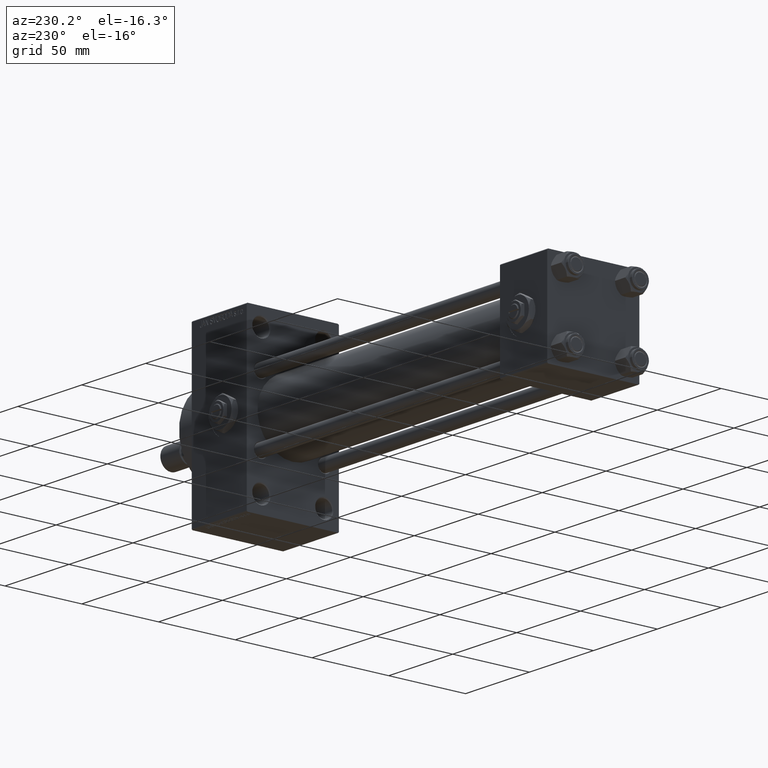
[diagram: clean part render]
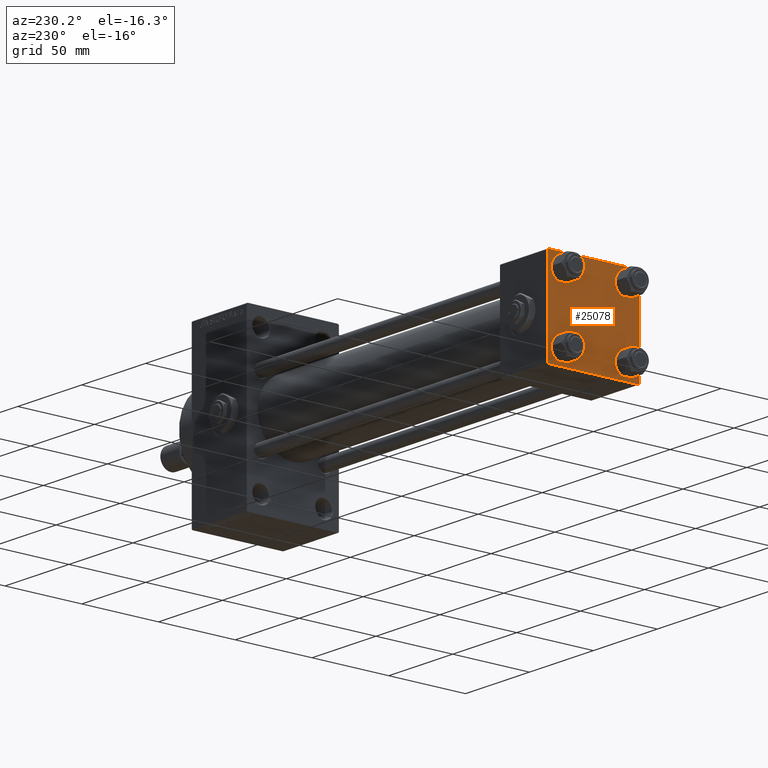
[diagram: same view with one face highlighted and labeled with its STEP entity id]
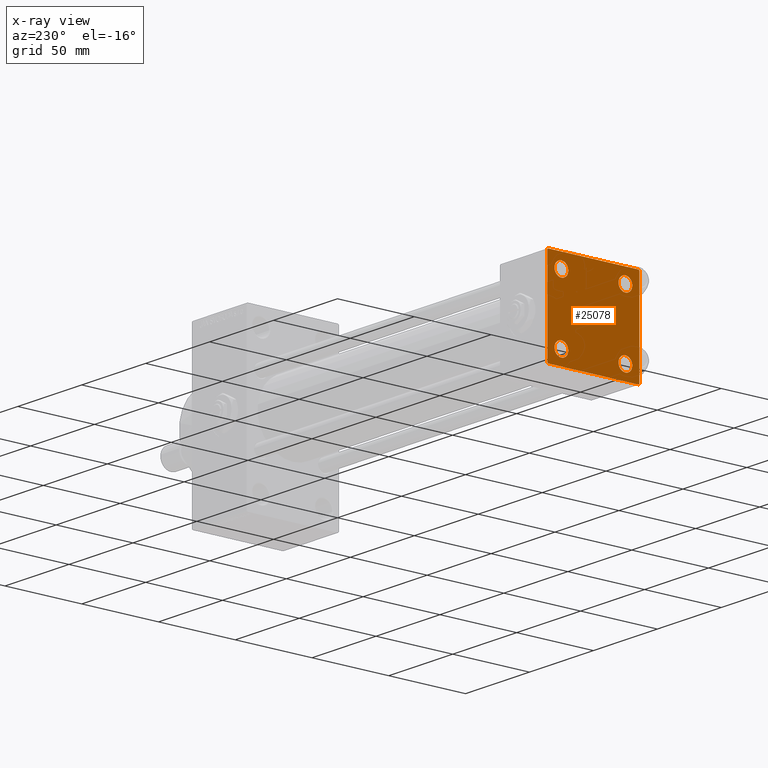
[diagram: x-ray of the same camera — body ghosted, the highlighted face saturated]
A machine part, auxiliary view. The second image highlights one B-rep face of the part: STEP entity #25078.
The next image is the same camera in x-ray: the body ghosted, the highlighted face saturated — about 0% of this face is hidden behind the body in this view.
In plain terms, the highlighted planar face has unit normal (-1, 0, 0).
Its self-contained STEP definition (entity closure, byte-faithful):
#1980 = CARTESIAN_POINT ( 'NONE',  ( 0.000000000000000000, -30.00000000000000000, 29.49999999999999289 ) ) ;
#2501 = VERTEX_POINT ( 'NONE', #5620 ) ;
#2502 = EDGE_LOOP ( 'NONE', ( #36385, #16051 ) ) ;
#3528 = VECTOR ( 'NONE', #19296, 1000.000000000000000 ) ;
#4139 = CARTESIAN_POINT ( 'NONE',  ( 0.000000000000000000, -20.84999999999999076, 20.85000000000000497 ) ) ;
#4181 = CIRCLE ( 'NONE', #20274, 4.500000000000017764 ) ;
#4874 = LINE ( 'NONE', #47580, #40814 ) ;
#4935 = ORIENTED_EDGE ( 'NONE', *, *, #15063, .T. ) ;
#5620 = CARTESIAN_POINT ( 'NONE',  ( 0.000000000000000000, 20.84999999999999787, -16.34999999999998366 ) ) ;
#6620 = CIRCLE ( 'NONE', #38924, 4.500000000000017764 ) ;
#6786 = EDGE_CURVE ( 'NONE', #34604, #22302, #4181, .T. ) ;
#6919 = DIRECTION ( 'NONE',  ( 1.000000000000000000, -0.000000000000000000, 0.000000000000000000 ) ) ;
#7015 = DIRECTION ( 'NONE',  ( 1.000000000000000000, -0.000000000000000000, 0.000000000000000000 ) ) ;
#7062 = VERTEX_POINT ( 'NONE', #46184 ) ;
#7713 = AXIS2_PLACEMENT_3D ( 'NONE', #16849, #47196, #19656 ) ;
#8112 = FACE_BOUND ( 'NONE', #26188, .T. ) ;
#8536 = EDGE_CURVE ( 'NONE', #28971, #17766, #49667, .T. ) ;
#8885 = CARTESIAN_POINT ( 'NONE',  ( 0.000000000000000000, -29.75000000000001066, -29.75000000000001066 ) ) ;
#9217 = VECTOR ( 'NONE', #34928, 1000.000000000000000 ) ;
#9225 = DIRECTION ( 'NONE',  ( 1.000000000000000000, -0.000000000000000000, 0.000000000000000000 ) ) ;
#10045 = CARTESIAN_POINT ( 'NONE',  ( 0.000000000000000000, 29.74999999999957723, -29.75000000000040501 ) ) ;
#10067 = VECTOR ( 'NONE', #18129, 999.9999999999998863 ) ;
#10217 = ORIENTED_EDGE ( 'NONE', *, *, #16921, .T. ) ;
#10677 = CARTESIAN_POINT ( 'NONE',  ( 0.000000000000000000, -20.84999999999999076, -20.85000000000000497 ) ) ;
#10796 = AXIS2_PLACEMENT_3D ( 'NONE', #41526, #6919, #37743 ) ;
#11641 = EDGE_CURVE ( 'NONE', #2501, #12977, #6620, .T. ) ;
#11889 = FACE_BOUND ( 'NONE', #37817, .T. ) ;
#12253 = EDGE_CURVE ( 'NONE', #15357, #17766, #43259, .T. ) ;
#12334 = DIRECTION ( 'NONE',  ( -0.000000000000000000, 0.7071067811865474617, 0.7071067811865474617 ) ) ;
#12977 = VERTEX_POINT ( 'NONE', #14975 ) ;
#13927 = VERTEX_POINT ( 'NONE', #28391 ) ;
#14078 = EDGE_CURVE ( 'NONE', #22302, #34604, #18801, .T. ) ;
#14226 = DIRECTION ( 'NONE',  ( 1.000000000000000000, -0.000000000000000000, 0.000000000000000000 ) ) ;
#14315 = CARTESIAN_POINT ( 'NONE',  ( 0.000000000000000000, -20.84999999999999076, -16.34999999999998721 ) ) ;
#14760 = LINE ( 'NONE', #18795, #3528 ) ;
#14975 = CARTESIAN_POINT ( 'NONE',  ( 0.000000000000000000, 20.84999999999999787, -25.35000000000001918 ) ) ;
#15063 = EDGE_CURVE ( 'NONE', #49579, #43220, #47929, .T. ) ;
#15357 = VERTEX_POINT ( 'NONE', #35392 ) ;
#15666 = ORIENTED_EDGE ( 'NONE', *, *, #8536, .F. ) ;
#15828 = CIRCLE ( 'NONE', #30321, 4.500000000000017764 ) ;
#16051 = ORIENTED_EDGE ( 'NONE', *, *, #44134, .T. ) ;
#16277 = CARTESIAN_POINT ( 'NONE',  ( 0.000000000000000000, 29.99999999999999289, 29.50000000000000000 ) ) ;
#16344 = ORIENTED_EDGE ( 'NONE', *, *, #35079, .F. ) ;
#16849 = CARTESIAN_POINT ( 'NONE',  ( 0.000000000000000000, 20.84999999999999787, 20.85000000000000142 ) ) ;
#16921 = EDGE_CURVE ( 'NONE', #37378, #33464, #45788, .T. ) ;
#17104 = LINE ( 'NONE', #43161, #47273 ) ;
#17428 = CIRCLE ( 'NONE', #46537, 4.500000000000017764 ) ;
#17766 = VERTEX_POINT ( 'NONE', #32117 ) ;
#18129 = DIRECTION ( 'NONE',  ( -0.000000000000000000, -0.7071067811865574537, -0.7071067811865376918 ) ) ;
#18304 = EDGE_CURVE ( 'NONE', #33464, #13927, #29751, .T. ) ;
#18510 = DIRECTION ( 'NONE',  ( 0.000000000000000000, 0.000000000000000000, 1.000000000000000000 ) ) ;
#18543 = ORIENTED_EDGE ( 'NONE', *, *, #23704, .T. ) ;
#18574 = CARTESIAN_POINT ( 'NONE',  ( 0.000000000000000000, -30.00000000000000000, 29.99999999999999289 ) ) ;
#18795 = CARTESIAN_POINT ( 'NONE',  ( 0.000000000000000000, 29.99999999999999289, 30.00000000000000000 ) ) ;
#18801 = CIRCLE ( 'NONE', #21241, 4.500000000000017764 ) ;
#18816 = DIRECTION ( 'NONE',  ( 0.000000000000000000, 0.000000000000000000, 1.000000000000000000 ) ) ;
#18967 = DIRECTION ( 'NONE',  ( -0.000000000000000000, 0.000000000000000000, 1.000000000000000000 ) ) ;
#19145 = ORIENTED_EDGE ( 'NONE', *, *, #18304, .T. ) ;
#19296 = DIRECTION ( 'NONE',  ( 0.000000000000000000, -1.000000000000000000, -1.156482317317871725E-16 ) ) ;
#19639 = EDGE_CURVE ( 'NONE', #43220, #49579, #32730, .T. ) ;
#19656 = DIRECTION ( 'NONE',  ( 0.000000000000000000, 0.000000000000000000, 1.000000000000000000 ) ) ;
#20274 = AXIS2_PLACEMENT_3D ( 'NONE', #10677, #30635, #18510 ) ;
#20825 = CARTESIAN_POINT ( 'NONE',  ( 0.000000000000000000, 20.84999999999999787, -20.85000000000000142 ) ) ;
#21165 = VECTOR ( 'NONE', #43742, 1000.000000000000114 ) ;
#21241 = AXIS2_PLACEMENT_3D ( 'NONE', #44554, #14226, #41769 ) ;
#21838 = DIRECTION ( 'NONE',  ( 1.000000000000000000, -0.000000000000000000, 0.000000000000000000 ) ) ;
#22299 = VECTOR ( 'NONE', #40776, 1000.000000000000114 ) ;
#22302 = VERTEX_POINT ( 'NONE', #33305 ) ;
#22496 = PLANE ( 'NONE',  #34570 ) ;
#22583 = EDGE_CURVE ( 'NONE', #7062, #44019, #48064, .T. ) ;
#23056 = CARTESIAN_POINT ( 'NONE',  ( 0.000000000000000000, -29.49999999999998579, 29.99999999999999289 ) ) ;
#23125 = EDGE_CURVE ( 'NONE', #13927, #15357, #4874, .T. ) ;
#23326 = DIRECTION ( 'NONE',  ( 1.000000000000000000, -0.000000000000000000, 0.000000000000000000 ) ) ;
#23506 = ORIENTED_EDGE ( 'NONE', *, *, #14078, .T. ) ;
#23704 = EDGE_CURVE ( 'NONE', #28971, #46039, #17104, .T. ) ;
#25078 = ADVANCED_FACE ( 'NONE', ( #38433, #8112, #11889, #27299, #26545 ), #22496, .T. ) ;
#25643 = CARTESIAN_POINT ( 'NONE',  ( 0.000000000000000000, 20.84999999999999787, -20.85000000000000142 ) ) ;
#26188 = EDGE_LOOP ( 'NONE', ( #49310, #23506 ) ) ;
#26257 = AXIS2_PLACEMENT_3D ( 'NONE', #4139, #23326, #43043 ) ;
#26545 = FACE_OUTER_BOUND ( 'NONE', #28183, .T. ) ;
#26564 = CARTESIAN_POINT ( 'NONE',  ( 0.000000000000000000, 29.99999999999999289, 30.00000000000000000 ) ) ;
#27299 = FACE_BOUND ( 'NONE', #2502, .T. ) ;
#28167 = DIRECTION ( 'NONE',  ( 0.000000000000000000, 0.000000000000000000, 1.000000000000000000 ) ) ;
#28183 = EDGE_LOOP ( 'NONE', ( #10217, #19145, #44832, #47512, #15666, #18543, #16344, #49384 ) ) ;
#28391 = CARTESIAN_POINT ( 'NONE',  ( 0.000000000000000000, 29.49999999999997868, -30.00000000000000000 ) ) ;
#28971 = VERTEX_POINT ( 'NONE', #1980 ) ;
#28979 = ORIENTED_EDGE ( 'NONE', *, *, #11641, .T. ) ;
#29751 = LINE ( 'NONE', #10045, #10067 ) ;
#29948 = DIRECTION ( 'NONE',  ( 0.000000000000000000, 0.000000000000000000, -1.000000000000000000 ) ) ;
#30321 = AXIS2_PLACEMENT_3D ( 'NONE', #20825, #9225, #28167 ) ;
#30635 = DIRECTION ( 'NONE',  ( 1.000000000000000000, -0.000000000000000000, 0.000000000000000000 ) ) ;
#31348 = CARTESIAN_POINT ( 'NONE',  ( 0.000000000000000000, 0.000000000000000000, 0.000000000000000000 ) ) ;
#31812 = ORIENTED_EDGE ( 'NONE', *, *, #19639, .T. ) ;
#32117 = CARTESIAN_POINT ( 'NONE',  ( 0.000000000000000000, -30.00000000000000000, -29.50000000000001776 ) ) ;
#32730 = CIRCLE ( 'NONE', #26257, 4.500000000000017764 ) ;
#33305 = CARTESIAN_POINT ( 'NONE',  ( 0.000000000000000000, -20.84999999999999076, -25.35000000000002274 ) ) ;
#33464 = VERTEX_POINT ( 'NONE', #39087 ) ;
#34138 = VERTEX_POINT ( 'NONE', #45466 ) ;
#34570 = AXIS2_PLACEMENT_3D ( 'NONE', #31348, #42724, #18967 ) ;
#34604 = VERTEX_POINT ( 'NONE', #14315 ) ;
#34928 = DIRECTION ( 'NONE',  ( 0.000000000000000000, 0.000000000000000000, -1.000000000000000000 ) ) ;
#35079 = EDGE_CURVE ( 'NONE', #34138, #46039, #14760, .T. ) ;
#35304 = CARTESIAN_POINT ( 'NONE',  ( 0.000000000000000000, -20.84999999999999076, 25.35000000000002274 ) ) ;
#35392 = CARTESIAN_POINT ( 'NONE',  ( 0.000000000000000000, -29.50000000000000000, -30.00000000000000711 ) ) ;
#36385 = ORIENTED_EDGE ( 'NONE', *, *, #22583, .T. ) ;
#36973 = LINE ( 'NONE', #40028, #22299 ) ;
#37378 = VERTEX_POINT ( 'NONE', #16277 ) ;
#37743 = DIRECTION ( 'NONE',  ( 0.000000000000000000, 0.000000000000000000, 1.000000000000000000 ) ) ;
#37817 = EDGE_LOOP ( 'NONE', ( #28979, #37996 ) ) ;
#37996 = ORIENTED_EDGE ( 'NONE', *, *, #40177, .T. ) ;
#38433 = FACE_BOUND ( 'NONE', #42296, .T. ) ;
#38924 = AXIS2_PLACEMENT_3D ( 'NONE', #25643, #21838, #18816 ) ;
#39087 = CARTESIAN_POINT ( 'NONE',  ( 0.000000000000000000, 29.99999999999999289, -29.50000000000000000 ) ) ;
#40028 = CARTESIAN_POINT ( 'NONE',  ( 0.000000000000000000, 29.74999999999999645, 29.74999999999999645 ) ) ;
#40177 = EDGE_CURVE ( 'NONE', #12977, #2501, #15828, .T. ) ;
#40776 = DIRECTION ( 'NONE',  ( 0.000000000000000000, 0.7071067811865474617, -0.7071067811865474617 ) ) ;
#40814 = VECTOR ( 'NONE', #47827, 1000.000000000000000 ) ;
#41526 = CARTESIAN_POINT ( 'NONE',  ( 0.000000000000000000, -20.84999999999999076, 20.85000000000000497 ) ) ;
#41769 = DIRECTION ( 'NONE',  ( 0.000000000000000000, 0.000000000000000000, 1.000000000000000000 ) ) ;
#42123 = CARTESIAN_POINT ( 'NONE',  ( 0.000000000000000000, 20.84999999999999787, 20.85000000000000142 ) ) ;
#42296 = EDGE_LOOP ( 'NONE', ( #31812, #4935 ) ) ;
#42724 = DIRECTION ( 'NONE',  ( -1.000000000000000000, 0.000000000000000000, -0.000000000000000000 ) ) ;
#42804 = VECTOR ( 'NONE', #29948, 1000.000000000000000 ) ;
#42882 = CARTESIAN_POINT ( 'NONE',  ( 0.000000000000000000, -20.84999999999999076, 16.34999999999998721 ) ) ;
#43043 = DIRECTION ( 'NONE',  ( 0.000000000000000000, 0.000000000000000000, 1.000000000000000000 ) ) ;
#43161 = CARTESIAN_POINT ( 'NONE',  ( -0.000000000000000000, -29.74999999999999645, 29.74999999999999645 ) ) ;
#43182 = CARTESIAN_POINT ( 'NONE',  ( 0.000000000000000000, 20.84999999999999787, 16.34999999999998366 ) ) ;
#43220 = VERTEX_POINT ( 'NONE', #35304 ) ;
#43259 = LINE ( 'NONE', #8885, #21165 ) ;
#43742 = DIRECTION ( 'NONE',  ( 0.000000000000000000, -0.7071067811865474617, 0.7071067811865474617 ) ) ;
#44019 = VERTEX_POINT ( 'NONE', #43182 ) ;
#44134 = EDGE_CURVE ( 'NONE', #44019, #7062, #17428, .T. ) ;
#44554 = CARTESIAN_POINT ( 'NONE',  ( 0.000000000000000000, -20.84999999999999076, -20.85000000000000497 ) ) ;
#44832 = ORIENTED_EDGE ( 'NONE', *, *, #23125, .T. ) ;
#45384 = EDGE_CURVE ( 'NONE', #34138, #37378, #36973, .T. ) ;
#45466 = CARTESIAN_POINT ( 'NONE',  ( 0.000000000000000000, 29.49999999999999289, 30.00000000000000000 ) ) ;
#45788 = LINE ( 'NONE', #26564, #9217 ) ;
#46039 = VERTEX_POINT ( 'NONE', #23056 ) ;
#46184 = CARTESIAN_POINT ( 'NONE',  ( 0.000000000000000000, 20.84999999999999787, 25.35000000000001918 ) ) ;
#46537 = AXIS2_PLACEMENT_3D ( 'NONE', #42123, #7015, #49719 ) ;
#47196 = DIRECTION ( 'NONE',  ( 1.000000000000000000, -0.000000000000000000, 0.000000000000000000 ) ) ;
#47273 = VECTOR ( 'NONE', #12334, 1000.000000000000114 ) ;
#47512 = ORIENTED_EDGE ( 'NONE', *, *, #12253, .T. ) ;
#47580 = CARTESIAN_POINT ( 'NONE',  ( 0.000000000000000000, 29.99999999999999289, -30.00000000000000000 ) ) ;
#47827 = DIRECTION ( 'NONE',  ( 0.000000000000000000, -1.000000000000000000, -1.156482317317871725E-16 ) ) ;
#47929 = CIRCLE ( 'NONE', #10796, 4.500000000000017764 ) ;
#48064 = CIRCLE ( 'NONE', #7713, 4.500000000000017764 ) ;
#49310 = ORIENTED_EDGE ( 'NONE', *, *, #6786, .T. ) ;
#49384 = ORIENTED_EDGE ( 'NONE', *, *, #45384, .T. ) ;
#49579 = VERTEX_POINT ( 'NONE', #42882 ) ;
#49667 = LINE ( 'NONE', #18574, #42804 ) ;
#49719 = DIRECTION ( 'NONE',  ( 0.000000000000000000, 0.000000000000000000, 1.000000000000000000 ) ) ;